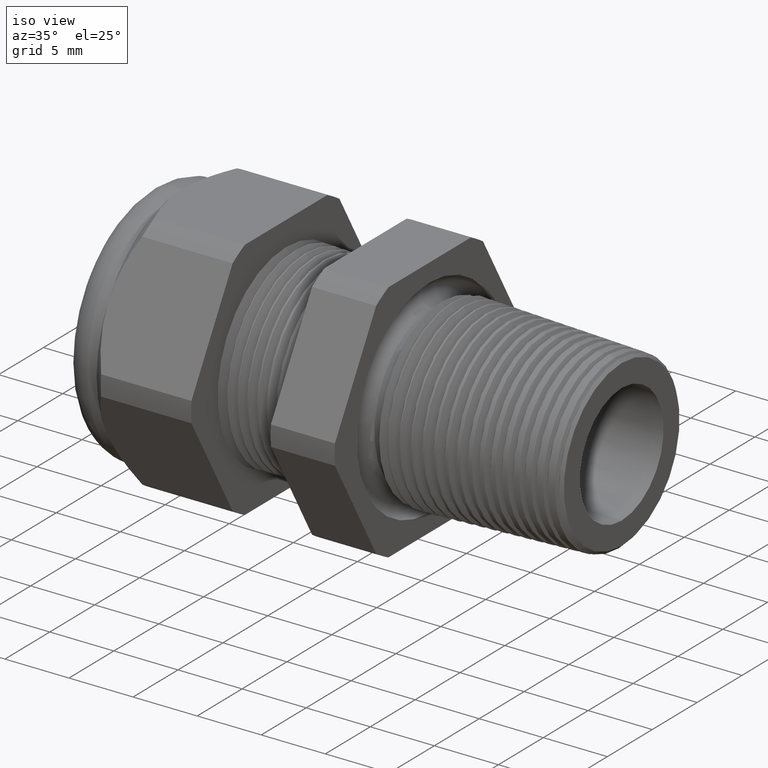
[diagram: clean part render]
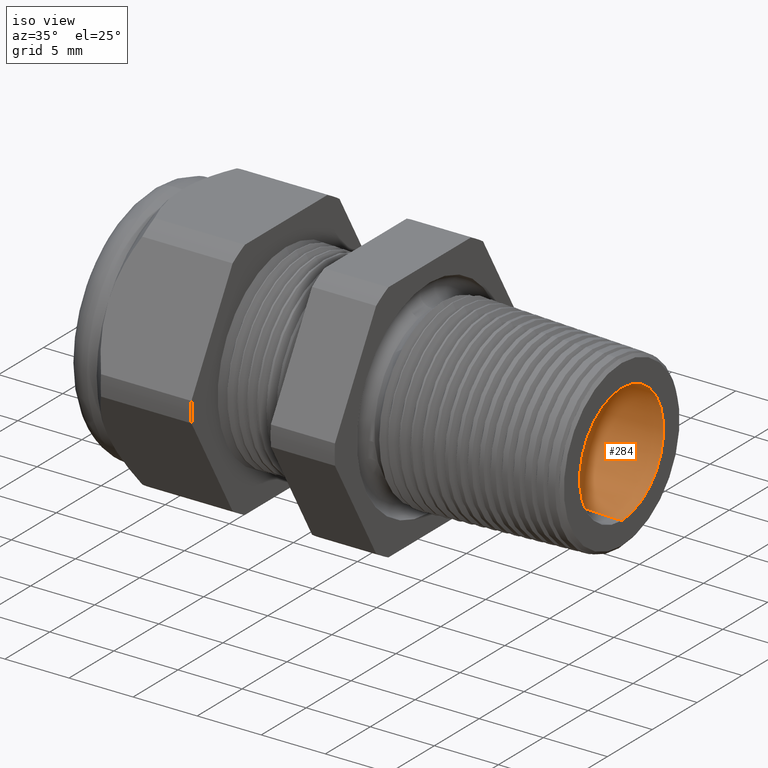
[diagram: same view with one face highlighted and labeled with its STEP entity id]
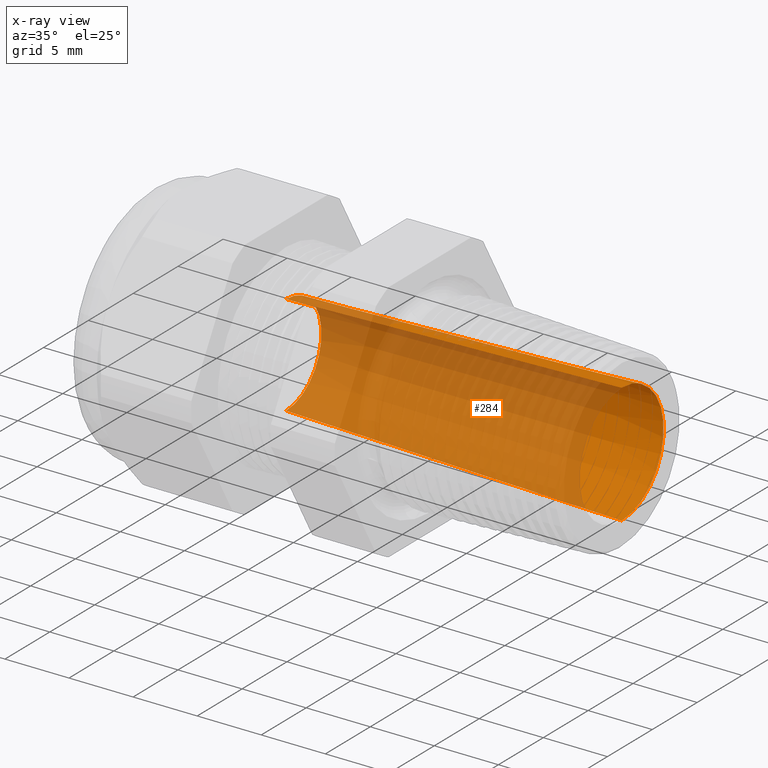
[diagram: x-ray of the same camera — body ghosted, the highlighted face saturated]
A machine part, iso view. The second image highlights one B-rep face of the part: STEP entity #284.
The next image is the same camera in x-ray: the body ghosted, the highlighted face saturated — about 78% of this face is hidden behind the body in this view.
In plain terms, the highlighted conical surface has half-angle 1.611 deg.
Its self-contained STEP definition (entity closure, byte-faithful):
#205 = ORIENTED_EDGE ( 'NONE', *, *, #1212, .F. ) ;
#206 = ORIENTED_EDGE ( 'NONE', *, *, #283, .F. ) ;
#207 = ORIENTED_EDGE ( 'NONE', *, *, #1218, .T. ) ;
#208 = ORIENTED_EDGE ( 'NONE', *, *, #209, .T. ) ;
#209 = EDGE_CURVE ( 'NONE', #1216, #1213, #1973, .T. ) ;
#283 = EDGE_CURVE ( 'NONE', #1210, #1209, #2153, .T. ) ;
#284 = ADVANCED_FACE ( 'NONE', ( #2149 ), #2148, .F. ) ;
#285 = EDGE_LOOP ( 'NONE', ( #205, #206, #207, #208 ) ) ;
#1209 = VERTEX_POINT ( 'NONE', #3840 ) ;
#1210 = VERTEX_POINT ( 'NONE', #3839 ) ;
#1212 = EDGE_CURVE ( 'NONE', #1209, #1213, #3838, .T. ) ;
#1213 = VERTEX_POINT ( 'NONE', #3895 ) ;
#1216 = VERTEX_POINT ( 'NONE', #3889 ) ;
#1218 = EDGE_CURVE ( 'NONE', #1210, #1216, #3888, .T. ) ;
#1969 = DIRECTION ( 'NONE',  ( 0.0000000000000000000, 0.0000000000000000000, -1.000000000000000000 ) ) ;
#1970 = DIRECTION ( 'NONE',  ( 1.000000000000000000, 0.0000000000000000000, 0.0000000000000000000 ) ) ;
#1971 = CARTESIAN_POINT ( 'NONE',  ( 0.2800000000000000300, 0.0000000000000000000, 0.0000000000000000000 ) ) ;
#1972 = AXIS2_PLACEMENT_3D ( 'NONE', #1971, #1970, #1969 ) ;
#1973 = CIRCLE ( 'NONE', #1972, 0.1840013610877269400 ) ;
#2093 = CARTESIAN_POINT ( 'NONE',  ( -0.7508661417322833900, 0.0000000000000000000, 0.0000000000000000000 ) ) ;
#2143 = DIRECTION ( 'NONE',  ( 0.0000000000000000000, 0.0000000000000000000, -1.000000000000000000 ) ) ;
#2144 = DIRECTION ( 'NONE',  ( 1.000000000000000000, 0.0000000000000000000, 0.0000000000000000000 ) ) ;
#2145 = CARTESIAN_POINT ( 'NONE',  ( -0.7508661417322833900, 0.0000000000000000000, 0.0000000000000000000 ) ) ;
#2146 = AXIS2_PLACEMENT_3D ( 'NONE', #2145, #2144, #2143 ) ;
#2148 = CONICAL_SURFACE ( 'NONE', #2146, 0.1550000000000000000, 0.02812558522312232800 ) ;
#2149 = FACE_OUTER_BOUND ( 'NONE', #285, .T. ) ;
#2150 = DIRECTION ( 'NONE',  ( 0.0000000000000000000, 0.0000000000000000000, -1.000000000000000000 ) ) ;
#2151 = DIRECTION ( 'NONE',  ( 1.000000000000000000, 0.0000000000000000000, 0.0000000000000000000 ) ) ;
#2152 = AXIS2_PLACEMENT_3D ( 'NONE', #2093, #2151, #2150 ) ;
#2153 = CIRCLE ( 'NONE', #2152, 0.1550000000000000000 ) ;
#3838 = LINE ( 'NONE', #3898, #3897 ) ;
#3839 = CARTESIAN_POINT ( 'NONE',  ( -0.7508661417322833900, 0.0000000000000000000, -0.1550000000000000000 ) ) ;
#3840 = CARTESIAN_POINT ( 'NONE',  ( -0.7508661417322833900, 1.898202538678397300E-017, 0.1550000000000000000 ) ) ;
#3885 = DIRECTION ( 'NONE',  ( 0.9996045018004825500, 0.0000000000000000000, -0.02812187725257727500 ) ) ;
#3886 = VECTOR ( 'NONE', #3885, 39.37007874015748900 ) ;
#3887 = CARTESIAN_POINT ( 'NONE',  ( -0.7508661417322833900, 0.0000000000000000000, -0.1550000000000000000 ) ) ;
#3888 = LINE ( 'NONE', #3887, #3886 ) ;
#3889 = CARTESIAN_POINT ( 'NONE',  ( 0.2800000000000000300, 0.0000000000000000000, -0.1840013610877269400 ) ) ;
#3895 = CARTESIAN_POINT ( 'NONE',  ( 0.2800000000000000300, 2.253366778948411600E-017, 0.1840013610877269400 ) ) ;
#3896 = DIRECTION ( 'NONE',  ( 0.9996045018004825500, 3.443936696338352400E-018, 0.02812187725257727500 ) ) ;
#3897 = VECTOR ( 'NONE', #3896, 39.37007874015748900 ) ;
#3898 = CARTESIAN_POINT ( 'NONE',  ( -0.7508661417322833900, 1.898202538678397300E-017, 0.1550000000000000000 ) ) ;